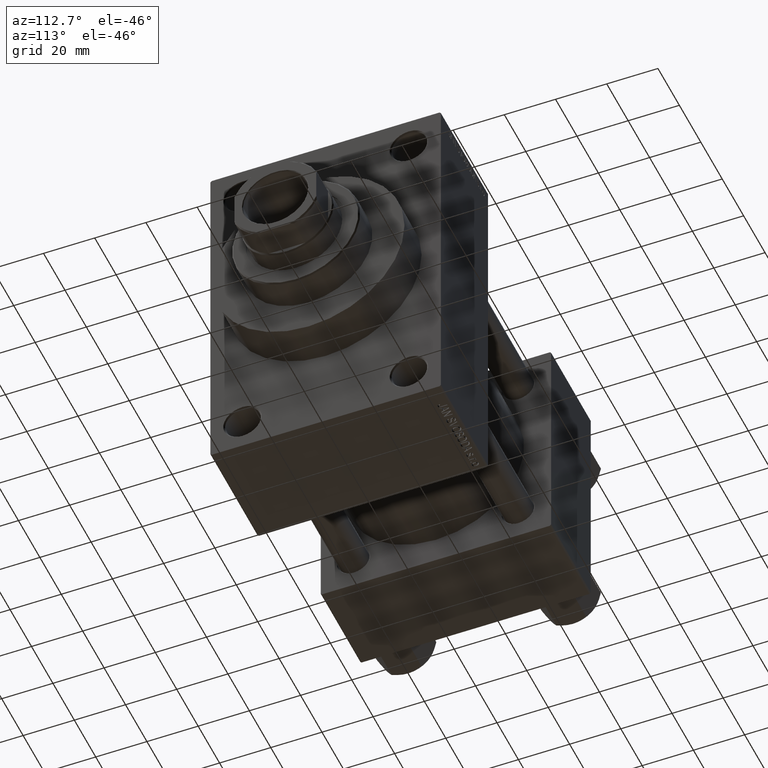
[diagram: clean part render]
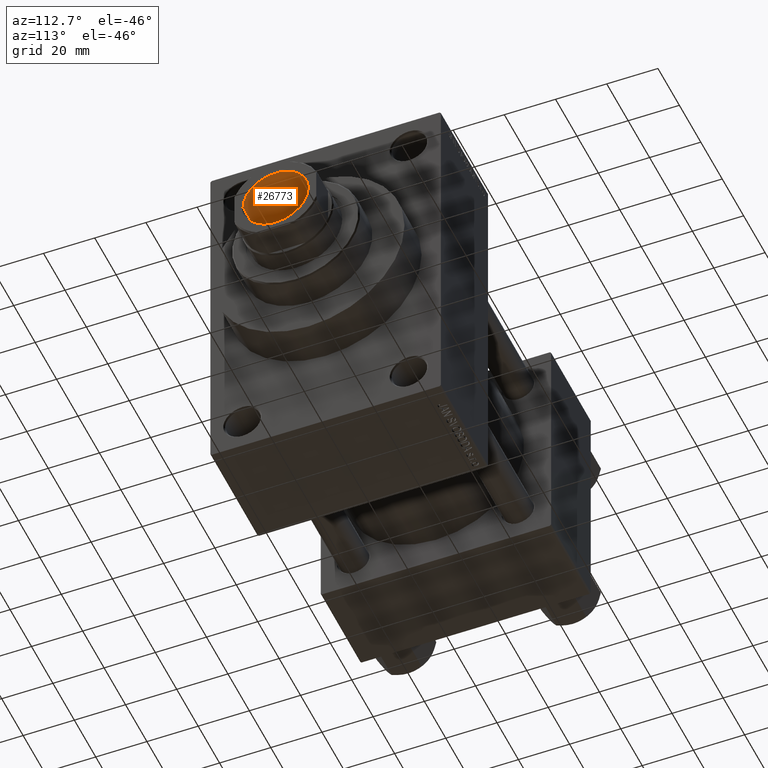
[diagram: same view with one face highlighted and labeled with its STEP entity id]
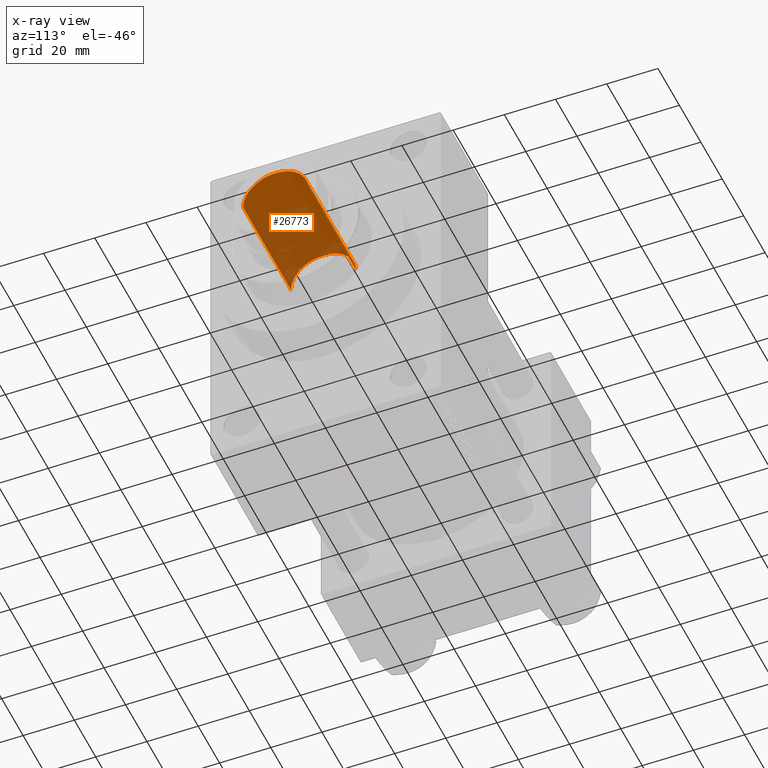
[diagram: x-ray of the same camera — body ghosted, the highlighted face saturated]
A machine part, auxiliary view. The second image highlights one B-rep face of the part: STEP entity #26773.
The next image is the same camera in x-ray: the body ghosted, the highlighted face saturated — about 45% of this face is hidden behind the body in this view.
In plain terms, the highlighted cylindrical surface (edge-blend (fillet) strip) has radius 12.75 mm, axis along (1, 0, 0).
Its self-contained STEP definition (entity closure, byte-faithful):
#1565 = CARTESIAN_POINT ( 'NONE',  ( 12.74999999999999112, 0.000000000000000000, 150.0000000000000284 ) ) ;
#1639 = LINE ( 'NONE', #45332, #17687 ) ;
#1653 = EDGE_CURVE ( 'NONE', #29571, #31854, #39012, .T. ) ;
#2097 = ORIENTED_EDGE ( 'NONE', *, *, #37713, .T. ) ;
#3509 = DIRECTION ( 'NONE',  ( 1.000000000000000000, 0.000000000000000000, 0.000000000000000000 ) ) ;
#3731 = CYLINDRICAL_SURFACE ( 'NONE', #29267, 12.74999999999999112 ) ;
#6911 = ORIENTED_EDGE ( 'NONE', *, *, #35827, .F. ) ;
#8778 = DIRECTION ( 'NONE',  ( 1.000000000000000000, 0.000000000000000000, 0.000000000000000000 ) ) ;
#10189 = CARTESIAN_POINT ( 'NONE',  ( 0.000000000000000000, 0.000000000000000000, 150.0000000000000284 ) ) ;
#10292 = AXIS2_PLACEMENT_3D ( 'NONE', #11400, #15929, #8778 ) ;
#10978 = DIRECTION ( 'NONE',  ( 1.000000000000000000, 0.000000000000000000, 0.000000000000000000 ) ) ;
#11400 = CARTESIAN_POINT ( 'NONE',  ( 0.000000000000000000, 0.000000000000000000, 149.7000000000000455 ) ) ;
#12626 = DIRECTION ( 'NONE',  ( -0.000000000000000000, -0.000000000000000000, 1.000000000000000000 ) ) ;
#13843 = ORIENTED_EDGE ( 'NONE', *, *, #1653, .F. ) ;
#15929 = DIRECTION ( 'NONE',  ( 0.000000000000000000, 0.000000000000000000, 1.000000000000000000 ) ) ;
#17354 = DIRECTION ( 'NONE',  ( -0.000000000000000000, -0.000000000000000000, 1.000000000000000000 ) ) ;
#17670 = DIRECTION ( 'NONE',  ( -0.000000000000000000, -0.000000000000000000, 1.000000000000000000 ) ) ;
#17687 = VECTOR ( 'NONE', #12626, 1000.000000000000000 ) ;
#19189 = AXIS2_PLACEMENT_3D ( 'NONE', #43693, #17670, #10978 ) ;
#19446 = CARTESIAN_POINT ( 'NONE',  ( -12.74999999999998934, 1.561424668912873928E-15, 105.0000000000000284 ) ) ;
#19701 = LINE ( 'NONE', #1565, #32881 ) ;
#21065 = ORIENTED_EDGE ( 'NONE', *, *, #44930, .T. ) ;
#21774 = EDGE_LOOP ( 'NONE', ( #13843, #2097, #21065, #6911 ) ) ;
#26773 = ADVANCED_FACE ( 'NONE', ( #31909 ), #3731, .F. ) ;
#28154 = CARTESIAN_POINT ( 'NONE',  ( 12.74999999999999112, 0.000000000000000000, 149.7000000000000455 ) ) ;
#29267 = AXIS2_PLACEMENT_3D ( 'NONE', #10189, #17354, #3509 ) ;
#29571 = VERTEX_POINT ( 'NONE', #19446 ) ;
#30682 = DIRECTION ( 'NONE',  ( -0.000000000000000000, -0.000000000000000000, 1.000000000000000000 ) ) ;
#30890 = CIRCLE ( 'NONE', #10292, 12.74999999999999112 ) ;
#30911 = CARTESIAN_POINT ( 'NONE',  ( -12.74999999999999112, 1.561424668912874125E-15, 149.7000000000000455 ) ) ;
#31337 = VERTEX_POINT ( 'NONE', #30911 ) ;
#31854 = VERTEX_POINT ( 'NONE', #42065 ) ;
#31909 = FACE_OUTER_BOUND ( 'NONE', #21774, .T. ) ;
#32881 = VECTOR ( 'NONE', #30682, 1000.000000000000000 ) ;
#35827 = EDGE_CURVE ( 'NONE', #31854, #36435, #19701, .T. ) ;
#36435 = VERTEX_POINT ( 'NONE', #28154 ) ;
#37713 = EDGE_CURVE ( 'NONE', #29571, #31337, #1639, .T. ) ;
#39012 = CIRCLE ( 'NONE', #19189, 12.74999999999998934 ) ;
#42065 = CARTESIAN_POINT ( 'NONE',  ( 12.74999999999998934, 0.000000000000000000, 105.0000000000000284 ) ) ;
#43693 = CARTESIAN_POINT ( 'NONE',  ( 0.000000000000000000, 0.000000000000000000, 105.0000000000000284 ) ) ;
#44930 = EDGE_CURVE ( 'NONE', #31337, #36435, #30890, .T. ) ;
#45332 = CARTESIAN_POINT ( 'NONE',  ( -12.74999999999999112, 1.561424668912874125E-15, 150.0000000000000284 ) ) ;